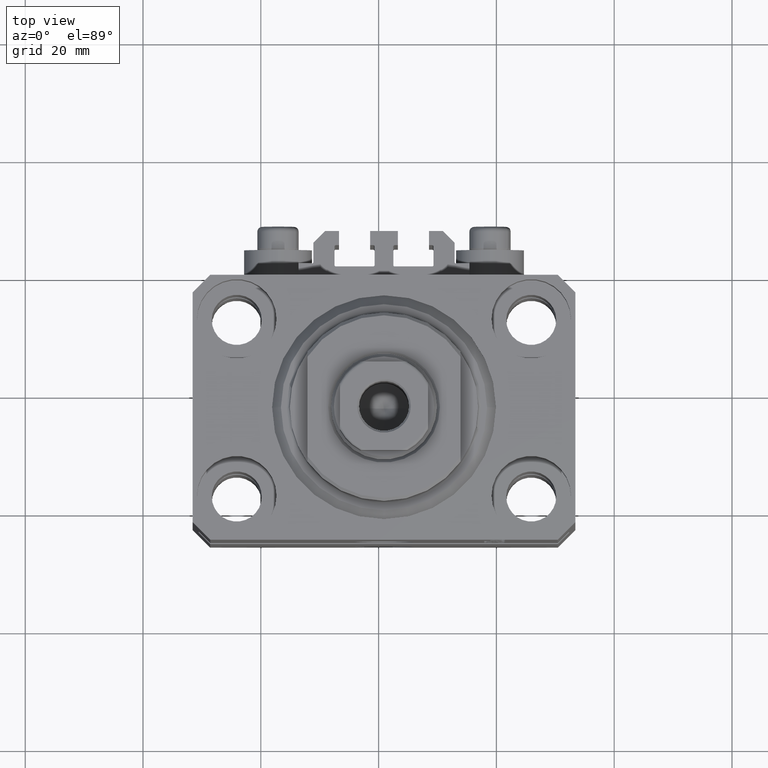
[diagram: clean part render]
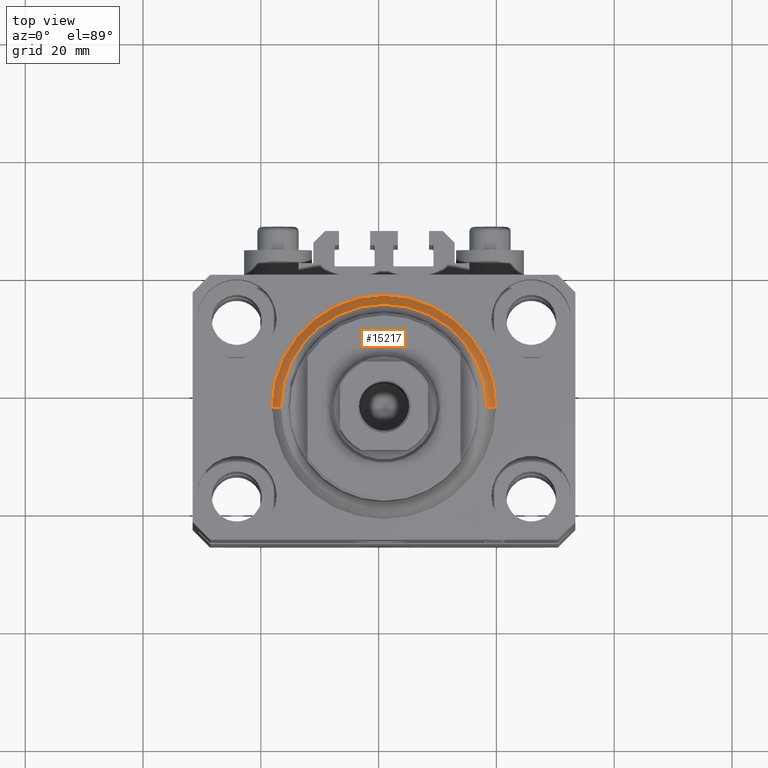
[diagram: same view with one face highlighted and labeled with its STEP entity id]
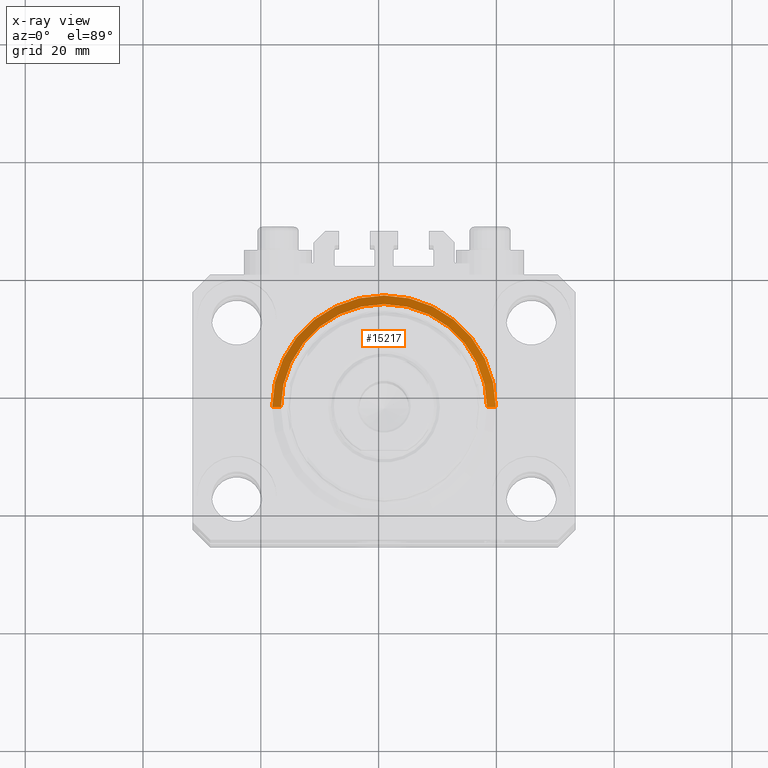
[diagram: x-ray of the same camera — body ghosted, the highlighted face saturated]
A machine part, top view. The second image highlights one B-rep face of the part: STEP entity #15217.
The next image is the same camera in x-ray: the body ghosted, the highlighted face saturated — about 0% of this face is hidden behind the body in this view.
In plain terms, the highlighted conical surface has half-angle 45 deg.
Its self-contained STEP definition (entity closure, byte-faithful):
#876 = VERTEX_POINT ( 'NONE', #8903 ) ;
#4951 = AXIS2_PLACEMENT_3D ( 'NONE', #12758, #9882, #23734 ) ;
#6976 = AXIS2_PLACEMENT_3D ( 'NONE', #21709, #36259, #32691 ) ;
#7193 = DIRECTION ( 'NONE',  ( -0.7071067811865483499, 8.659560562354943952E-17, 0.7071067811865467956 ) ) ;
#8524 = CARTESIAN_POINT ( 'NONE',  ( 17.49999999999999289, 0.000000000000000000, 0.000000000000000000 ) ) ;
#8903 = CARTESIAN_POINT ( 'NONE',  ( 19.00000000000000000, 2.326828918379970970E-15, 1.500000000000004885 ) ) ;
#9882 = DIRECTION ( 'NONE',  ( -0.000000000000000000, -0.000000000000000000, 1.000000000000000000 ) ) ;
#10245 = VECTOR ( 'NONE', #7193, 1000.000000000000000 ) ;
#12758 = CARTESIAN_POINT ( 'NONE',  ( 0.000000000000000000, 0.000000000000000000, 1.500000000000004885 ) ) ;
#12941 = EDGE_CURVE ( 'NONE', #28640, #23251, #40515, .T. ) ;
#15217 = ADVANCED_FACE ( 'NONE', ( #19765 ), #31448, .T. ) ;
#15514 = ORIENTED_EDGE ( 'NONE', *, *, #36616, .F. ) ;
#15996 = CARTESIAN_POINT ( 'NONE',  ( 19.00000000000000000, 0.000000000000000000, 1.500000000000004885 ) ) ;
#16224 = EDGE_CURVE ( 'NONE', #23251, #876, #20060, .T. ) ;
#16896 = VERTEX_POINT ( 'NONE', #36370 ) ;
#19765 = FACE_OUTER_BOUND ( 'NONE', #46285, .T. ) ;
#19940 = VECTOR ( 'NONE', #31504, 1000.000000000000000 ) ;
#20060 = LINE ( 'NONE', #15996, #19940 ) ;
#20654 = CARTESIAN_POINT ( 'NONE',  ( -17.49999999999999289, 2.234980408443919215E-15, 0.000000000000000000 ) ) ;
#21709 = CARTESIAN_POINT ( 'NONE',  ( 0.000000000000000000, 0.000000000000000000, 0.000000000000000000 ) ) ;
#22869 = DIRECTION ( 'NONE',  ( -0.000000000000000000, -0.000000000000000000, 1.000000000000000000 ) ) ;
#23251 = VERTEX_POINT ( 'NONE', #8524 ) ;
#23734 = DIRECTION ( 'NONE',  ( 1.000000000000000000, 0.000000000000000000, 0.000000000000000000 ) ) ;
#26206 = CARTESIAN_POINT ( 'NONE',  ( 0.000000000000000000, 0.000000000000000000, 1.500000000000004885 ) ) ;
#27072 = ORIENTED_EDGE ( 'NONE', *, *, #30796, .T. ) ;
#28640 = VERTEX_POINT ( 'NONE', #20654 ) ;
#30796 = EDGE_CURVE ( 'NONE', #28640, #16896, #46310, .T. ) ;
#31448 = CONICAL_SURFACE ( 'NONE', #37534, 19.00000000000000000, 0.7853981633974492782 ) ;
#31504 = DIRECTION ( 'NONE',  ( 0.7071067811865483499, 0.000000000000000000, 0.7071067811865467956 ) ) ;
#32691 = DIRECTION ( 'NONE',  ( 1.000000000000000000, 0.000000000000000000, 0.000000000000000000 ) ) ;
#34162 = ORIENTED_EDGE ( 'NONE', *, *, #16224, .F. ) ;
#36201 = CIRCLE ( 'NONE', #4951, 19.00000000000000000 ) ;
#36259 = DIRECTION ( 'NONE',  ( -0.000000000000000000, -0.000000000000000000, -1.000000000000000000 ) ) ;
#36370 = CARTESIAN_POINT ( 'NONE',  ( -19.00000000000000000, 0.000000000000000000, 1.500000000000004885 ) ) ;
#36616 = EDGE_CURVE ( 'NONE', #876, #16896, #36201, .T. ) ;
#37534 = AXIS2_PLACEMENT_3D ( 'NONE', #26206, #22869, #44547 ) ;
#37559 = ORIENTED_EDGE ( 'NONE', *, *, #12941, .F. ) ;
#40515 = CIRCLE ( 'NONE', #6976, 17.49999999999999289 ) ;
#44547 = DIRECTION ( 'NONE',  ( 1.000000000000000000, 0.000000000000000000, 0.000000000000000000 ) ) ;
#46077 = CARTESIAN_POINT ( 'NONE',  ( -19.00000000000000000, 2.326828918379970970E-15, 1.500000000000004885 ) ) ;
#46285 = EDGE_LOOP ( 'NONE', ( #37559, #27072, #15514, #34162 ) ) ;
#46310 = LINE ( 'NONE', #46077, #10245 ) ;